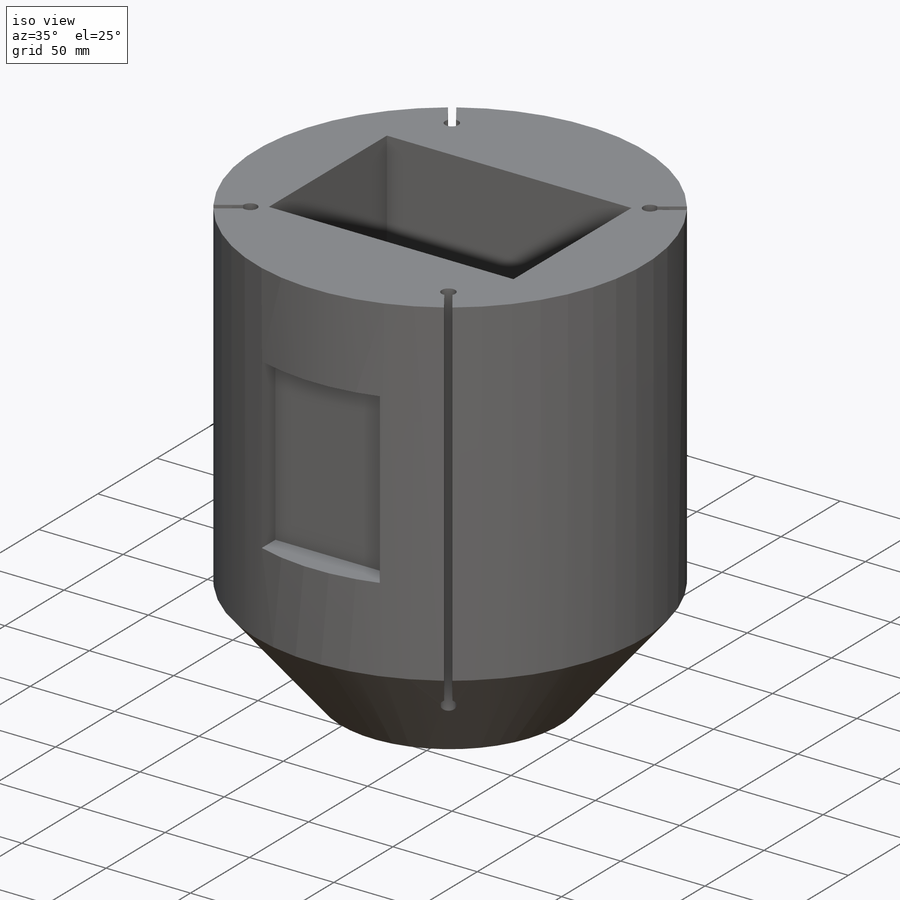
[diagram: iso view]
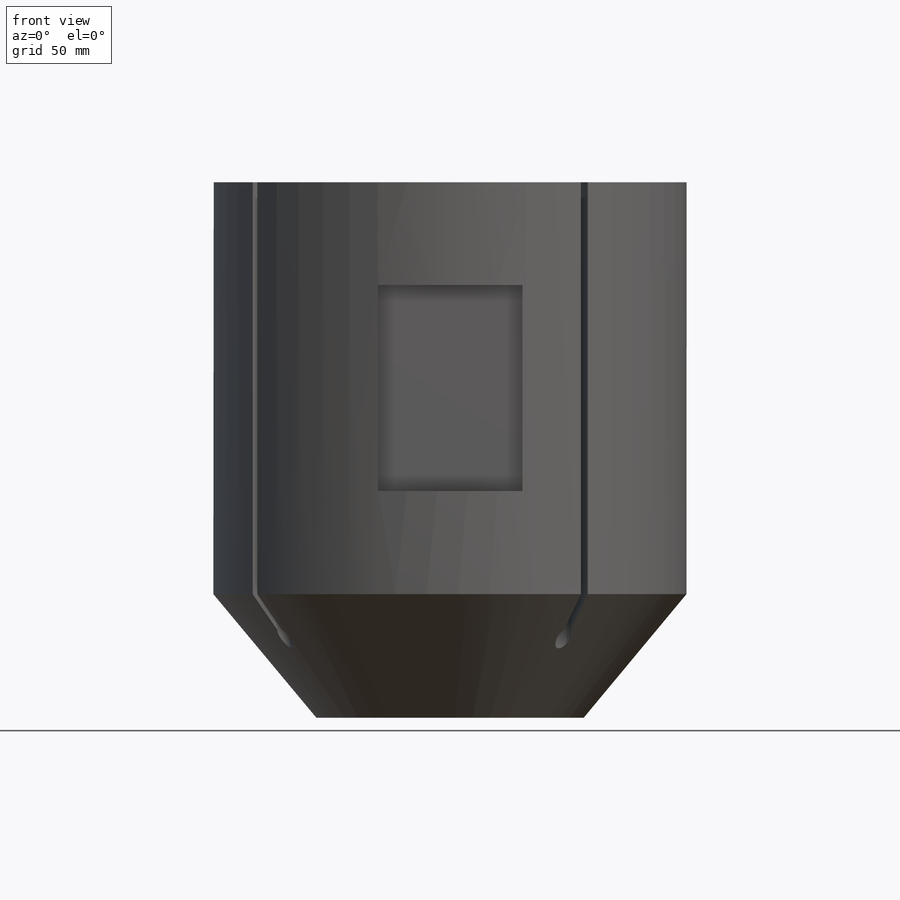
[diagram: front view]
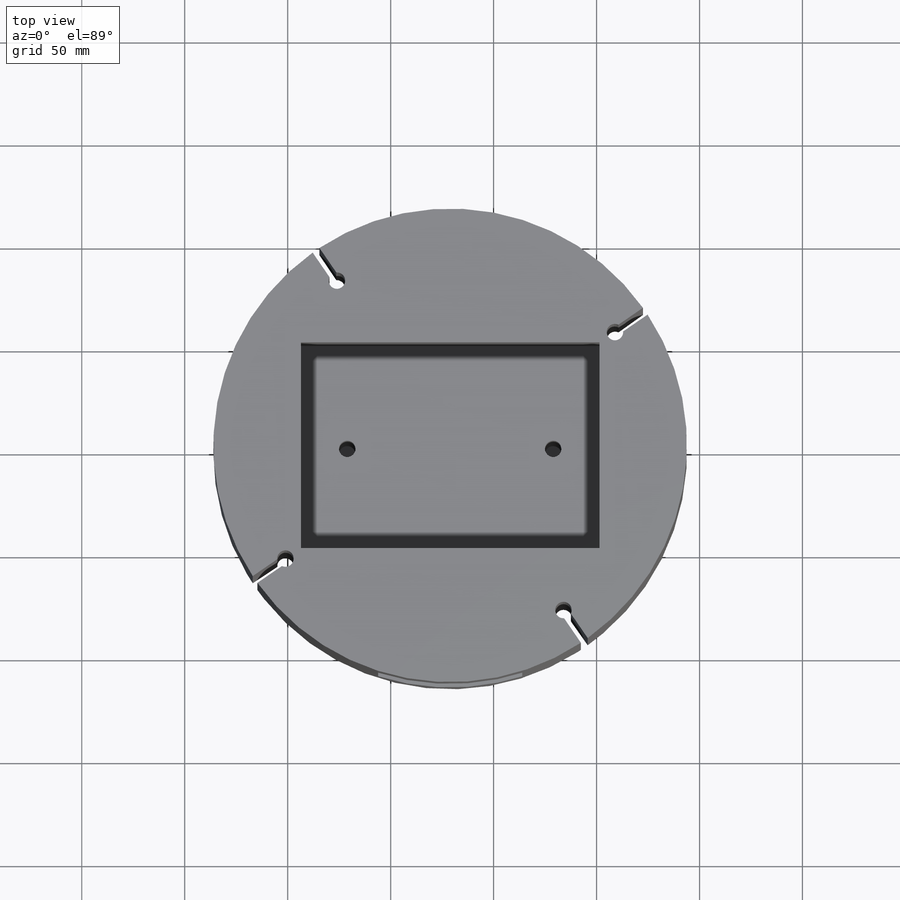
[diagram: top view]
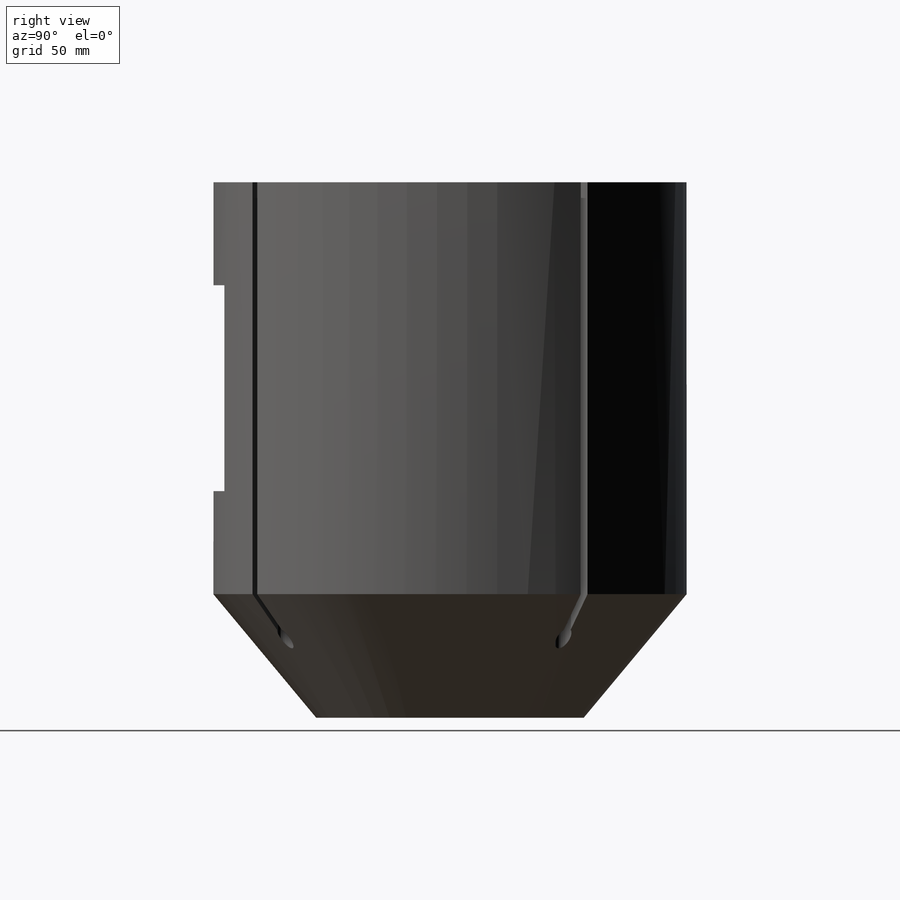
[diagram: right view]
SOLIDWORKS PART (.sldprt)
format: sldprt  version: not decoded by parser v0  size: 224,256 bytes
history: native  units: mm
features: sketch x6, plane x4, cut_extrude x4, material x1, revolve x1 (+9 scaffold rows collapsed)
feature tree (25):
  scaffold x9  (default folders/planes/origin — collapsed)
  material  "Materiale <non specificato>"
  plane  "Piano frontale"
  plane  "Piano superiore"
  plane  "Piano destro"
  sketch  "Schizzo1"  dims[D1=115.0mm D2=200.0mm D3=200.0mm D4=60.0mm D5=65.0mm]
  revolve  "Rivoluzione1"  Angle=360deg
  sketch  "Schizzo2"  dims[D1=80.0mm D2=55.0mm D3=55.0mm D4=80.0mm]
  cut_extrude  "Taglio-Estrusione1"  [1 undecoded]
  sketch  "Schizzo3"  dims[D1=145.0mm D2=100.0mm]
  cut_extrude  "Taglio-Estrusione2"  Depth=100mm
  sketch  "Schizzo4"  dims[D2=8.0mm D1=50.0mm]
  cut_extrude  "Taglio-Estrusione3"  Depth=250mm
  sketch  "Schizzo5"  dims[D1=115.0mm D2=17.0mm]
  plane  "Piano1"
  sketch  "Schizzo6"  dims[D1=100.0mm D2=70.0mm]
  cut_extrude  "Taglio-Estrusione4"  [1 undecoded]
decode coverage: 9 of 11 modeling features carry decoded parameters
note: 2 parameter values undecoded
note: suppression state not decoded; provenance and decode notes live in map.json
